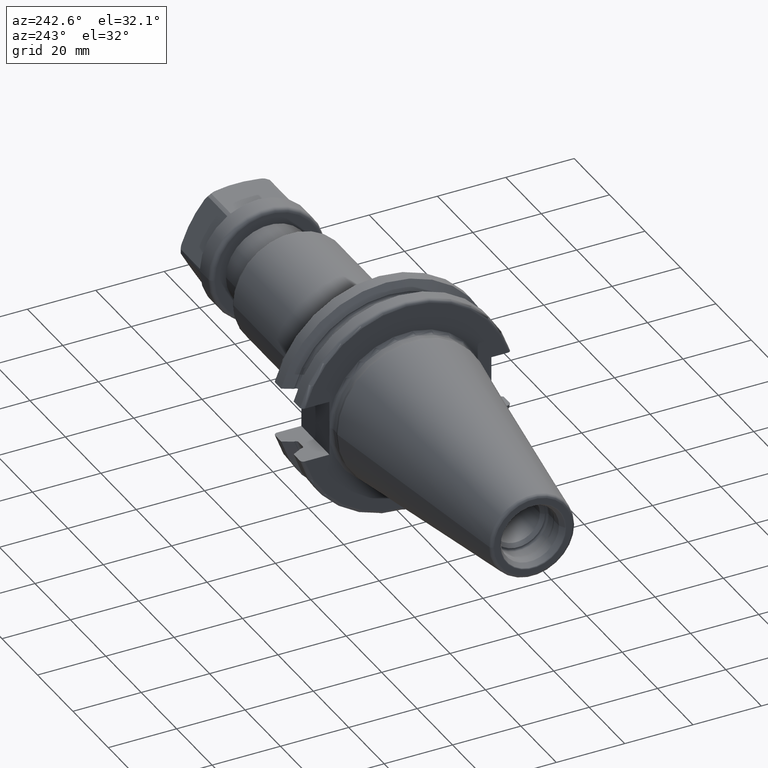
[diagram: clean part render]
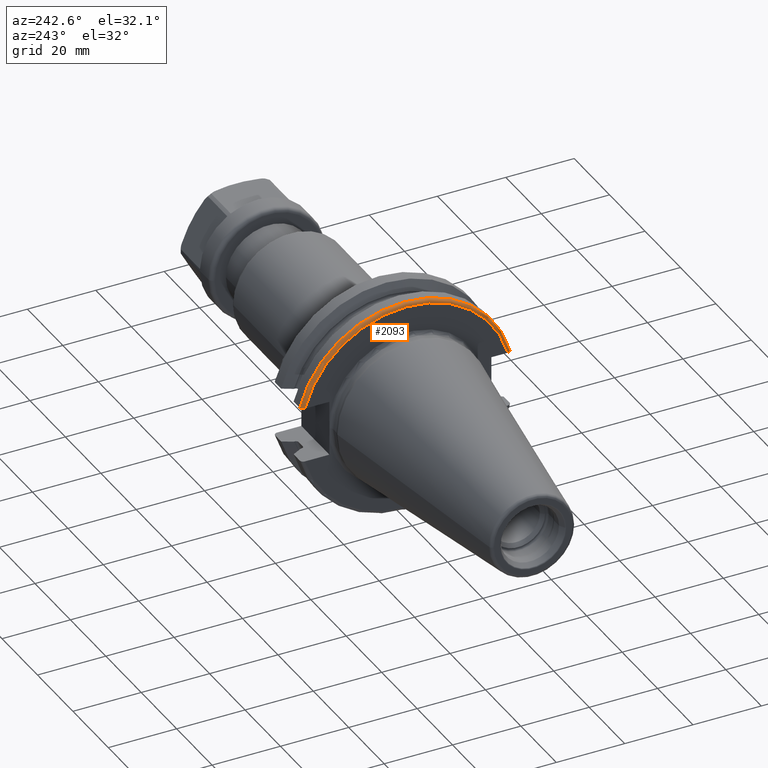
[diagram: same view with one face highlighted and labeled with its STEP entity id]
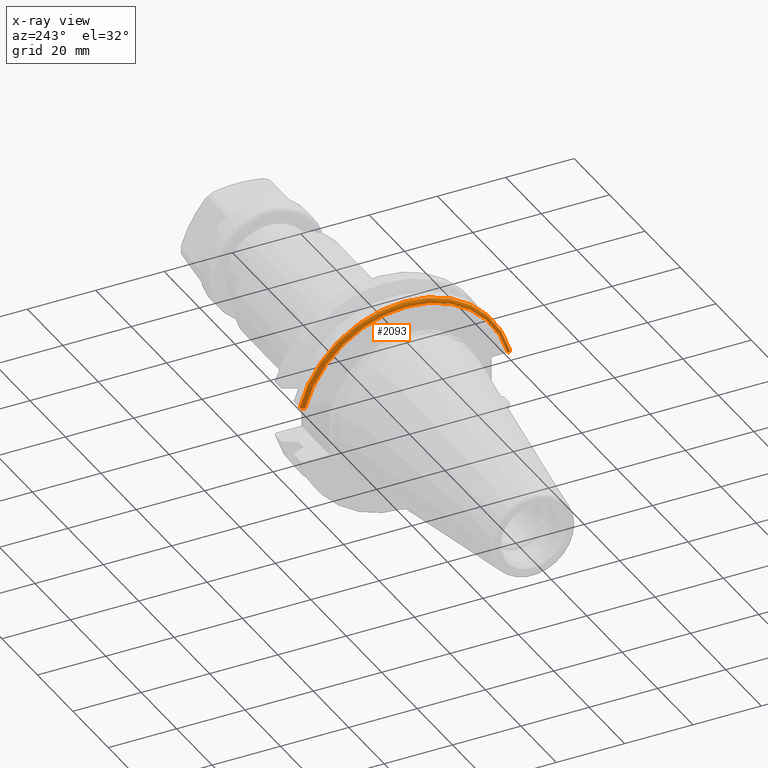
[diagram: x-ray of the same camera — body ghosted, the highlighted face saturated]
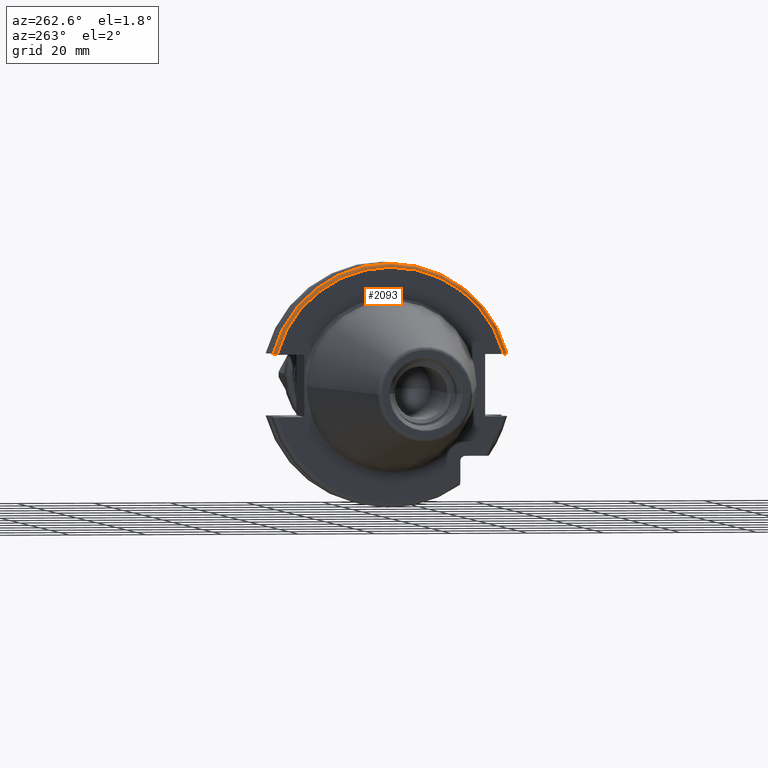
[diagram: same view with one face highlighted and labeled with its STEP entity id]
A machine part, auxiliary view. The second image highlights one B-rep face of the part: STEP entity #2093.
The next image is the same camera in x-ray: the body ghosted, the highlighted face saturated — about 0% of this face is hidden behind the body in this view.
A second angle (auxiliary view) of the same face is appended — the face is thin or edge-on in the first view.
In plain terms, the highlighted toroidal blend (fillet) surface has major radius 30.7625 mm and minor (blend) radius 1 mm.
Its self-contained STEP definition (entity closure, byte-faithful):
#443=CARTESIAN_POINT('',(4.2E0,3.071231684927E1,8.1E0));
#444=CARTESIAN_POINT('',(4.122975496592E0,3.071231684927E1,8.1E0));
#445=CARTESIAN_POINT('',(3.973434275890E0,3.069445502310E1,8.1E0));
#446=CARTESIAN_POINT('',(3.757148362145E0,3.061539366421E1,8.1E0));
#447=CARTESIAN_POINT('',(3.565367695912E0,3.048860164744E1,8.1E0));
#448=CARTESIAN_POINT('',(3.407348762296E0,3.032249788839E1,8.1E0));
#449=CARTESIAN_POINT('',(3.289450816159E0,3.012561805664E1,8.1E0));
#450=CARTESIAN_POINT('',(3.216670609282E0,2.990711670215E1,8.1E0));
#451=CARTESIAN_POINT('',(3.2E0,2.975517161523E1,8.1E0));
#452=CARTESIAN_POINT('',(3.2E0,2.967695075728E1,8.1E0));
#454=CARTESIAN_POINT('',(4.2E0,0.E0,0.E0));
#455=DIRECTION('',(1.E0,0.E0,0.E0));
#456=DIRECTION('',(0.E0,9.669363825036E-1,2.550177095632E-1));
#457=AXIS2_PLACEMENT_3D('',#454,#455,#456);
#459=CARTESIAN_POINT('',(3.2E0,-2.967695075728E1,8.1E0));
#460=CARTESIAN_POINT('',(3.2E0,-2.975535829664E1,8.1E0));
#461=CARTESIAN_POINT('',(3.216736704136E0,-2.990767511790E1,8.1E0));
#462=CARTESIAN_POINT('',(3.290003023403E0,-3.012696803037E1,8.1E0));
#463=CARTESIAN_POINT('',(3.408578685874E0,-3.032415560769E1,8.1E0));
#464=CARTESIAN_POINT('',(3.566974678455E0,-3.048991705446E1,8.1E0));
#465=CARTESIAN_POINT('',(3.758498450120E0,-3.061600082070E1,8.1E0));
#466=CARTESIAN_POINT('',(3.973995795704E0,-3.069452712052E1,8.1E0));
#467=CARTESIAN_POINT('',(4.123165215148E0,-3.071231684927E1,8.1E0));
#468=CARTESIAN_POINT('',(4.2E0,-3.071231684927E1,8.1E0));
#499=CARTESIAN_POINT('',(3.2E0,0.E0,0.E0));
#500=DIRECTION('',(1.E0,0.E0,0.E0));
#501=DIRECTION('',(0.E0,9.647119303464E-1,2.633075985372E-1));
#502=AXIS2_PLACEMENT_3D('',#499,#500,#501);
#1418=CARTESIAN_POINT('',(4.2E0,3.071231684927E1,8.1E0));
#1419=VERTEX_POINT('',#1418);
#1422=CARTESIAN_POINT('',(4.2E0,-3.071231684927E1,8.1E0));
#1423=VERTEX_POINT('',#1422);
#1426=CARTESIAN_POINT('',(3.2E0,2.967695075728E1,8.1E0));
#1428=VERTEX_POINT('',#1426);
#1444=CARTESIAN_POINT('',(3.2E0,-2.967695075728E1,8.1E0));
#1445=VERTEX_POINT('',#1444);
#2081=CARTESIAN_POINT('',(4.2E0,0.E0,0.E0));
#2082=DIRECTION('',(1.E0,0.E0,0.E0));
#2083=DIRECTION('',(0.E0,-1.E0,0.E0));
#2084=AXIS2_PLACEMENT_3D('',#2081,#2082,#2083);
#2085=TOROIDAL_SURFACE('',#2084,3.07625E1,1.E0);
#2086=ORIENTED_EDGE('',*,*,#1890,.F.);
#2087=ORIENTED_EDGE('',*,*,#2063,.T.);
#2088=ORIENTED_EDGE('',*,*,#1952,.F.);
#2090=ORIENTED_EDGE('',*,*,#2089,.F.);
#2091=EDGE_LOOP('',(#2086,#2087,#2088,#2090));
#2092=FACE_OUTER_BOUND('',#2091,.F.);
#2093=ADVANCED_FACE('',(#2092),#2085,.T.);
#453=B_SPLINE_CURVE_WITH_KNOTS('',3,(#443,#444,#445,#446,#447,#448,#449,#450,
#451,#452),.UNSPECIFIED.,.F.,.F.,(4,1,1,1,1,1,1,4),(0.E0,1.428571428571E-1,
2.857142857143E-1,4.285714285714E-1,5.714285714286E-1,7.142857142857E-1,
8.571428571429E-1,1.E0),.UNSPECIFIED.);
#458=CIRCLE('',#457,3.17625E1);
#469=B_SPLINE_CURVE_WITH_KNOTS('',3,(#459,#460,#461,#462,#463,#464,#465,#466,
#467,#468),.UNSPECIFIED.,.F.,.F.,(4,1,1,1,1,1,1,4),(0.E0,1.428571428571E-1,
2.857142857143E-1,4.285714285714E-1,5.714285714286E-1,7.142857142857E-1,
8.571428571429E-1,1.E0),.UNSPECIFIED.);
#503=CIRCLE('',#502,3.07625E1);
#1890=EDGE_CURVE('',#1419,#1428,#453,.T.);
#1952=EDGE_CURVE('',#1445,#1423,#469,.T.);
#2063=EDGE_CURVE('',#1419,#1423,#458,.T.);
#2089=EDGE_CURVE('',#1428,#1445,#503,.T.);